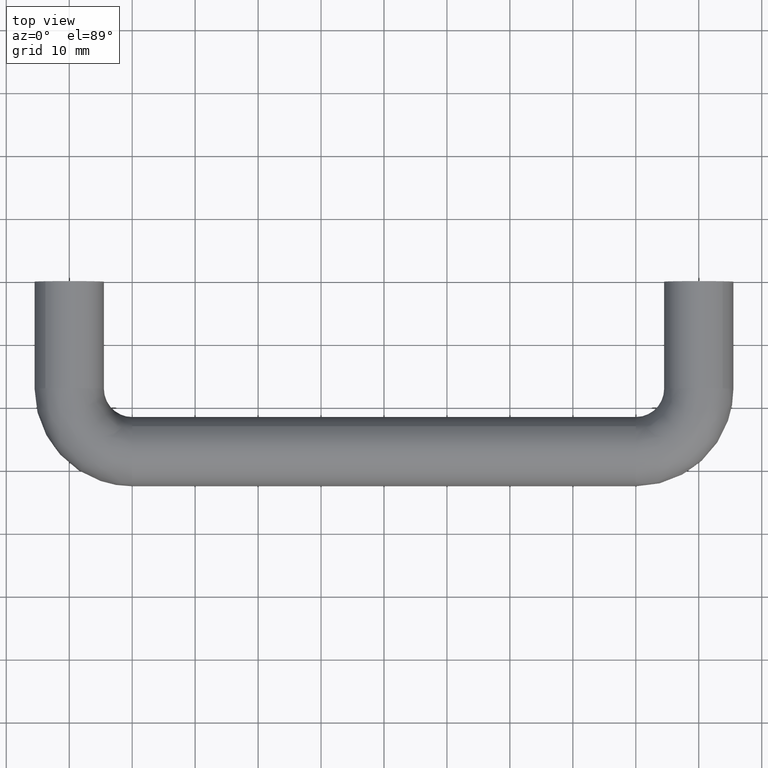
[diagram: clean part render]
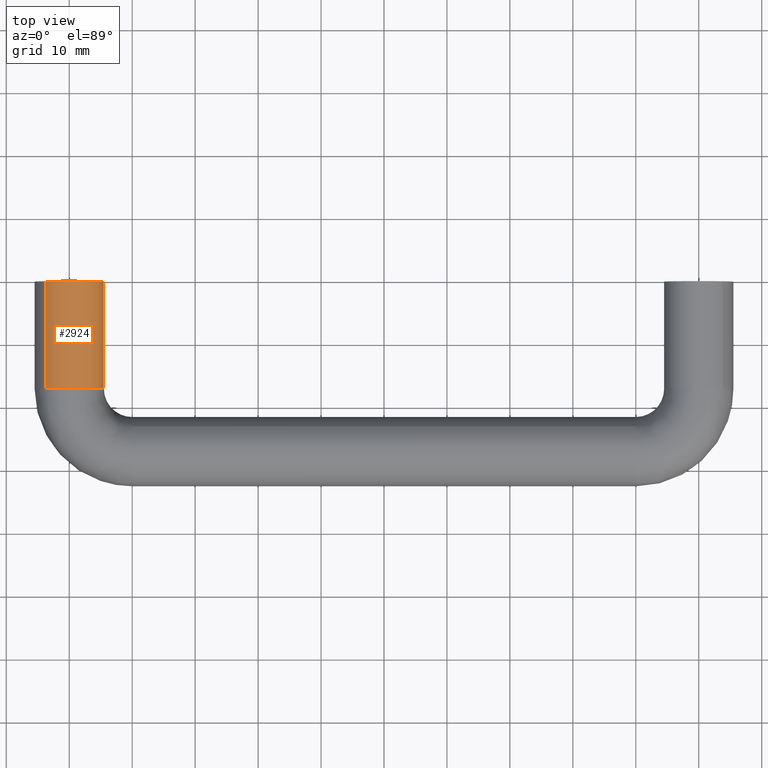
[diagram: same view with one face highlighted and labeled with its STEP entity id]
A machine part, top view. The second image highlights one B-rep face of the part: STEP entity #2924.
In plain terms, the highlighted face is a freeform B-spline surface patch.
Its self-contained STEP definition (entity closure, byte-faithful):
#2587=CARTESIAN_POINT('',(5.500000000000000,-17.000000000583992,-4.421545E-016));
#2588=VERTEX_POINT('',#2587);
#2602=CARTESIAN_POINT('',(0.0,-16.999999999989601,5.500000000000000));
#2603=VERTEX_POINT('',#2602);
#2604=CARTESIAN_POINT('',(5.500000000000000,-17.000000000583992,-4.421545E-016));
#2605=CARTESIAN_POINT('',(5.500052138429635,-17.000000000563329,0.382468396822121));
#2606=CARTESIAN_POINT('',(5.415210006830447,-17.000000000514952,1.192407044377020));
#2607=CARTESIAN_POINT('',(5.067856392873896,-17.000000000440551,2.222686018565456));
#2608=CARTESIAN_POINT('',(4.534063739692170,-17.000000000360760,3.164850551681977));
#2609=CARTESIAN_POINT('',(3.840164884548482,-17.000000000278192,3.999998725801510));
#2610=CARTESIAN_POINT('',(2.943029346594440,-17.000000000192308,4.691299590545965));
#2611=CARTESIAN_POINT('',(2.029765935822713,-17.000000000118909,5.136943508617507));
#2612=CARTESIAN_POINT('',(1.079886917366092,-17.000000000051990,5.425097562544032));
#2613=CARTESIAN_POINT('',(0.404974242258562,-17.000000000011489,5.500074412454319));
#2614=CARTESIAN_POINT('',(0.0,-16.999999999989601,5.500000000000000));
#2615=B_SPLINE_CURVE_WITH_KNOTS('',3,(#2604,#2605,#2606,#2607,#2608,#2609,#2610,#2611,#2612,#2613,#2614),.UNSPECIFIED.,.F.,.U.,(4,1,1,1,1,1,1,1,4),(0.000000120921603,1.147409312418182,2.429841470859113,3.239793234106595,4.387176248211264,5.669611197551312,6.614568123782830,7.424526014211695,8.639434005820240),.UNSPECIFIED.);
#2616=EDGE_CURVE('',#2588,#2603,#2615,.T.);
#2618=CARTESIAN_POINT('',(-3.785950131360987,-16.999997988854972,3.989559073738165));
#2619=VERTEX_POINT('',#2618);
#2620=CARTESIAN_POINT('',(0.0,-16.999999999989601,5.500000000000000));
#2621=CARTESIAN_POINT('',(-0.587247800923035,-16.999999777126519,5.500330464569303));
#2622=CARTESIAN_POINT('',(-1.587477072224518,-16.999999335763452,5.338215297136896));
#2623=CARTESIAN_POINT('',(-2.858916106652401,-16.999998629752159,4.750349712700669));
#2624=CARTESIAN_POINT('',(-3.502026188161446,-16.999998199007450,4.259078877922055));
#2625=CARTESIAN_POINT('',(-3.785950131360987,-16.999997988854972,3.989559073738165));
#2626=B_SPLINE_CURVE_WITH_KNOTS('',3,(#2620,#2621,#2622,#2623,#2624,#2625),.UNSPECIFIED.,.F.,.U.,(4,1,1,4),(0.000000028708288,1.761645785629772,3.001300706088014,4.175724670413525),.UNSPECIFIED.);
#2627=EDGE_CURVE('',#2603,#2619,#2626,.T.);
#2688=CARTESIAN_POINT('',(3.785950339472700,-16.999999349611780,-3.989559293196833));
#2689=VERTEX_POINT('',#2688);
#2699=CARTESIAN_POINT('',(3.785950339472700,-16.999999349611780,-3.989559293196833));
#2700=CARTESIAN_POINT('',(4.038928980461251,-16.999999445687401,-3.749536276907073));
#2701=CARTESIAN_POINT('',(4.545033226827613,-16.999999637895030,-3.168339026792260));
#2702=CARTESIAN_POINT('',(5.102076697848779,-16.999999849450720,-2.166141351442027));
#2703=CARTESIAN_POINT('',(5.431238898736726,-16.999999974463741,-1.069419156327546));
#2704=CARTESIAN_POINT('',(5.500034111855519,-17.000000000594859,-0.348725362820619));
#2705=CARTESIAN_POINT('',(5.500000000000000,-17.000000000583992,-4.421545E-016));
#2706=B_SPLINE_CURVE_WITH_KNOTS('',3,(#2699,#2700,#2701,#2702,#2703,#2704,#2705),.UNSPECIFIED.,.F.,.U.,(4,1,1,1,4),(0.000000035010383,1.046180910392249,2.301581240249779,3.417528763482490,4.463709638845098),.UNSPECIFIED.);
#2707=EDGE_CURVE('',#2689,#2588,#2706,.T.);
#2851=CARTESIAN_POINT('',(3.785950166315646,0.425000000014600,-3.989559040567581));
#2852=CARTESIAN_POINT('',(7.775509206883227,0.425000000014600,-0.203608874251935));
#2853=CARTESIAN_POINT('',(3.989559040567581,0.425000000014600,3.785950166315646));
#2854=CARTESIAN_POINT('',(0.203608874251935,0.425000000014600,7.775509206883227));
#2855=CARTESIAN_POINT('',(-3.785950166315646,0.425000000014600,3.989559040567581));
#2856=CARTESIAN_POINT('',(3.785950166315646,-17.435625000598950,-3.989559040567581));
#2857=CARTESIAN_POINT('',(7.775509206883227,-17.435625000598950,-0.203608874251935));
#2858=CARTESIAN_POINT('',(3.989559040567581,-17.435625000598950,3.785950166315646));
#2859=CARTESIAN_POINT('',(0.203608874251935,-17.435625000598950,7.775509206883227));
#2860=CARTESIAN_POINT('',(-3.785950166315646,-17.435625000598950,3.989559040567581));
#2868=(BOUNDED_SURFACE()B_SPLINE_SURFACE(2,1,((#2851,#2856),(#2852,#2857),(#2853,#2858),(#2854,#2859),(#2855,#2860)),.UNSPECIFIED.,.F.,.F.,.U.)B_SPLINE_SURFACE_WITH_KNOTS((3,2,3),(2,2),(0.0,9.112698372208088,18.225396744416180),(0.0,17.860625000613549),.UNSPECIFIED.)GEOMETRIC_REPRESENTATION_ITEM()RATIONAL_B_SPLINE_SURFACE(((1.0,1.0),(0.707106781186548,0.707106781186548),(1.0,1.0),(0.707106781186548,0.707106781186548),(1.0,1.0)))REPRESENTATION_ITEM('')SURFACE());
#2869=ORIENTED_EDGE('',*,*,#2707,.F.);
#2870=CARTESIAN_POINT('',(3.785949922808327,-3.885781E-016,-3.989558854698237));
#2871=VERTEX_POINT('',#2870);
#2872=CARTESIAN_POINT('',(3.785949922808327,-3.885781E-016,-3.989558854698237));
#2873=CARTESIAN_POINT('',(3.785950339472700,-16.999999349611780,-3.989559293196833));
#2874=QUASI_UNIFORM_CURVE('',1,(#2872,#2873),.UNSPECIFIED.,.F.,.U.);
#2875=EDGE_CURVE('',#2871,#2689,#2874,.T.);
#2876=ORIENTED_EDGE('',*,*,#2875,.F.);
#2877=CARTESIAN_POINT('',(5.499999999999867,0.0,0.000001211437125));
#2878=VERTEX_POINT('',#2877);
#2879=CARTESIAN_POINT('',(3.785949922808327,-3.885781E-016,-3.989558854698237));
#2880=CARTESIAN_POINT('',(4.038932227914661,-3.652004E-016,-3.749538672895016));
#2881=CARTESIAN_POINT('',(4.514344447832200,-3.120208E-016,-3.203539155395239));
#2882=CARTESIAN_POINT('',(5.083301525119938,-2.152360E-016,-2.209842713512377));
#2883=CARTESIAN_POINT('',(5.426829226163286,-1.086883E-016,-1.115909283453295));
#2884=CARTESIAN_POINT('',(5.500029961732281,-3.396538E-017,-0.348723872404761));
#2885=CARTESIAN_POINT('',(5.499999999999867,0.0,0.000001211437125));
#2886=B_SPLINE_CURVE_WITH_KNOTS('',3,(#2879,#2880,#2881,#2882,#2883,#2884,#2885),.UNSPECIFIED.,.F.,.U.,(4,1,1,1,4),(0.000000035019100,1.046181136878337,2.162128901723482,3.417529503364407,4.463710605242858),.UNSPECIFIED.);
#2887=EDGE_CURVE('',#2871,#2878,#2886,.T.);
#2888=ORIENTED_EDGE('',*,*,#2887,.T.);
#2889=CARTESIAN_POINT('',(0.0,0.0,5.500000000000000));
#2890=VERTEX_POINT('',#2889);
#2891=CARTESIAN_POINT('',(5.499999999999867,0.0,0.000001211437125));
#2892=CARTESIAN_POINT('',(5.500103353423874,0.0,0.449970462498917));
#2893=CARTESIAN_POINT('',(5.400051250732772,0.0,1.259869647045019));
#2894=CARTESIAN_POINT('',(5.034430239403870,0.0,2.281549262862978));
#2895=CARTESIAN_POINT('',(4.489659369371331,0.0,3.243421187291872));
#2896=CARTESIAN_POINT('',(3.728615315089982,0.0,4.114829175416054));
#2897=CARTESIAN_POINT('',(2.673691020510232,0.0,4.857732784103537));
#2898=CARTESIAN_POINT('',(1.439792010021330,0.0,5.368838165446564));
#2899=CARTESIAN_POINT('',(0.517481257530122,0.0,5.500183171703489));
#2900=CARTESIAN_POINT('',(0.0,0.0,5.500000000000000));
#2901=B_SPLINE_CURVE_WITH_KNOTS('',3,(#2891,#2892,#2893,#2894,#2895,#2896,#2897,#2898,#2899,#2900),.UNSPECIFIED.,.F.,.U.,(4,1,1,1,1,1,1,4),(0.000000121133130,1.349898503226321,2.429841278921708,3.239792978498310,4.657158033758551,5.872101741077877,7.087048307467452,8.639433323029898),.UNSPECIFIED.);
#2902=EDGE_CURVE('',#2878,#2890,#2901,.T.);
#2903=ORIENTED_EDGE('',*,*,#2902,.T.);
#2904=CARTESIAN_POINT('',(-3.785949922382049,-3.885781E-016,3.989558855102763));
#2905=VERTEX_POINT('',#2904);
#2906=CARTESIAN_POINT('',(0.0,0.0,5.500000000000000));
#2907=CARTESIAN_POINT('',(-0.521985448524929,-5.357495E-017,5.500203962321279));
#2908=CARTESIAN_POINT('',(-1.522315974408180,-1.562458E-016,5.356528559984820));
#2909=CARTESIAN_POINT('',(-2.806812711044533,-2.880825E-016,4.790273352289152));
#2910=CARTESIAN_POINT('',(-3.502017994907374,-3.594362E-016,4.259062580095309));
#2911=CARTESIAN_POINT('',(-3.785949922382049,-3.885781E-016,3.989558855102763));
#2912=B_SPLINE_CURVE_WITH_KNOTS('',3,(#2906,#2907,#2908,#2909,#2910,#2911),.UNSPECIFIED.,.F.,.U.,(4,1,1,4),(0.000000028705442,1.565904767734305,3.001300622791111,4.175724554512494),.UNSPECIFIED.);
#2913=EDGE_CURVE('',#2890,#2905,#2912,.T.);
#2914=ORIENTED_EDGE('',*,*,#2913,.T.);
#2915=CARTESIAN_POINT('',(-3.785949922382049,-3.885781E-016,3.989558855102763));
#2916=CARTESIAN_POINT('',(-3.785950131360987,-16.999997988854972,3.989559073738165));
#2917=QUASI_UNIFORM_CURVE('',1,(#2915,#2916),.UNSPECIFIED.,.F.,.U.);
#2918=EDGE_CURVE('',#2905,#2619,#2917,.T.);
#2919=ORIENTED_EDGE('',*,*,#2918,.T.);
#2920=ORIENTED_EDGE('',*,*,#2627,.F.);
#2921=ORIENTED_EDGE('',*,*,#2616,.F.);
#2922=EDGE_LOOP('',(#2869,#2876,#2888,#2903,#2914,#2919,#2920,#2921));
#2923=FACE_OUTER_BOUND('',#2922,.T.);
#2924=ADVANCED_FACE('',(#2923),#2868,.T.);